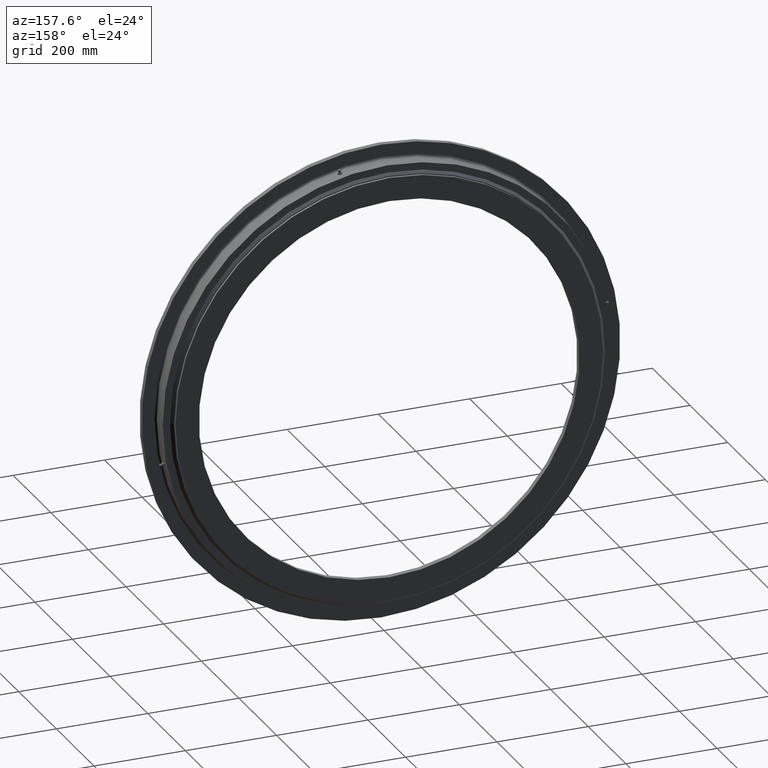
[diagram: clean part render]
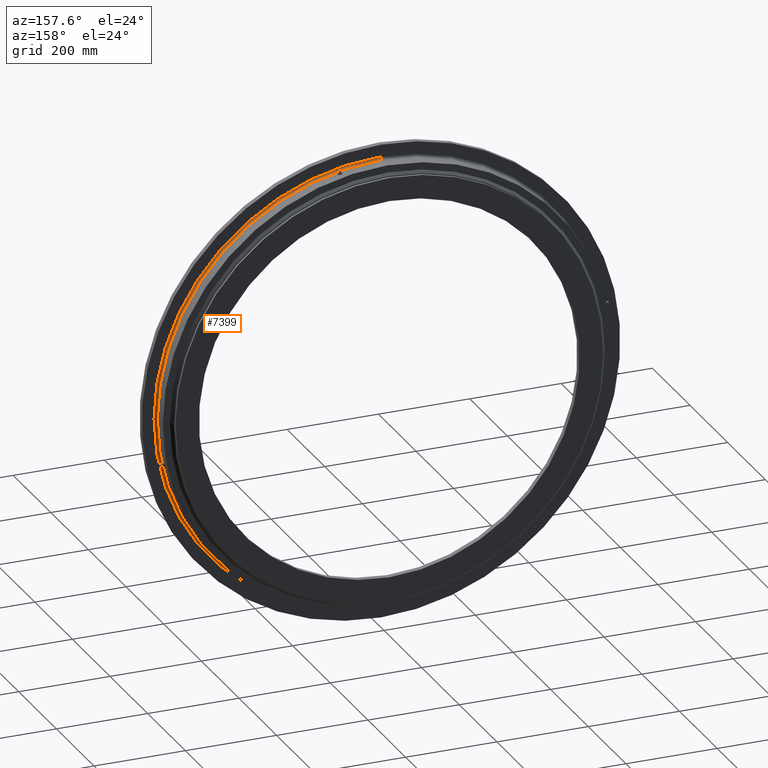
[diagram: same view with one face highlighted and labeled with its STEP entity id]
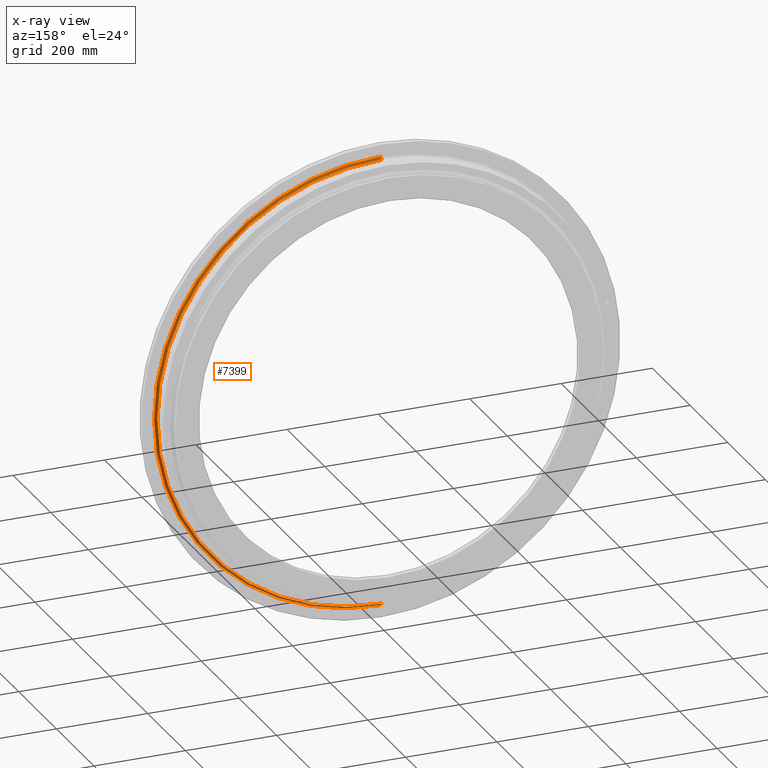
[diagram: x-ray of the same camera — body ghosted, the highlighted face saturated]
A machine part, auxiliary view. The second image highlights one B-rep face of the part: STEP entity #7399.
The next image is the same camera in x-ray: the body ghosted, the highlighted face saturated — about 0% of this face is hidden behind the body in this view.
In plain terms, the highlighted toroidal blend (fillet) surface has major radius 497 mm and minor (blend) radius 5 mm.
Its self-contained STEP definition (entity closure, byte-faithful):
#35 = AXIS2_PLACEMENT_3D ( 'NONE', #6426, #2688, #7034 ) ;
#187 = CARTESIAN_POINT ( 'NONE',  ( 0.0000000000000000000, -11.00000000000003600, 497.0000000000000000 ) ) ;
#729 = TOROIDAL_SURFACE ( 'NONE', #3355, 497.0000000000000000, 5.000000000000000000 ) ;
#812 = DIRECTION ( 'NONE',  ( 0.0000000000000000000, 0.0000000000000000000, 1.000000000000000000 ) ) ;
#1587 = EDGE_CURVE ( 'NONE', #3289, #3042, #2614, .T. ) ;
#2135 = DIRECTION ( 'NONE',  ( -0.0000000000000000000, 1.000000000000000000, -5.904125040278464100E-017 ) ) ;
#2245 = CARTESIAN_POINT ( 'NONE',  ( 6.086494591762345700E-014, -11.00000000000009400, -497.0000000000000000 ) ) ;
#2263 = AXIS2_PLACEMENT_3D ( 'NONE', #187, #4523, #812 ) ;
#2339 = VERTEX_POINT ( 'NONE', #7457 ) ;
#2458 = EDGE_CURVE ( 'NONE', #3289, #3147, #5355, .T. ) ;
#2614 = CIRCLE ( 'NONE', #4127, 492.0000000000000000 ) ;
#2688 = DIRECTION ( 'NONE',  ( 0.0000000000000000000, -1.000000000000000000, 5.904125040278464100E-017 ) ) ;
#2863 = DIRECTION ( 'NONE',  ( 1.224646799147349500E-016, 0.0000000000000000000, -1.000000000000000000 ) ) ;
#2926 = DIRECTION ( 'NONE',  ( -0.0000000000000000000, 1.000000000000000000, -5.904125040278464100E-017 ) ) ;
#3042 = VERTEX_POINT ( 'NONE', #4066 ) ;
#3147 = VERTEX_POINT ( 'NONE', #6731 ) ;
#3231 = CARTESIAN_POINT ( 'NONE',  ( 0.0000000000000000000, -11.00000000000003600, 492.0000000000000000 ) ) ;
#3289 = VERTEX_POINT ( 'NONE', #3231 ) ;
#3355 = AXIS2_PLACEMENT_3D ( 'NONE', #7706, #2135, #5877 ) ;
#3470 = AXIS2_PLACEMENT_3D ( 'NONE', #2245, #6594, #2863 ) ;
#3757 = EDGE_CURVE ( 'NONE', #2339, #3147, #5306, .T. ) ;
#4030 = CIRCLE ( 'NONE', #3470, 5.000000000000004400 ) ;
#4066 = CARTESIAN_POINT ( 'NONE',  ( 6.025262251804978100E-014, -11.00000000000009400, -492.0000000000000000 ) ) ;
#4124 = ORIENTED_EDGE ( 'NONE', *, *, #3757, .F. ) ;
#4127 = AXIS2_PLACEMENT_3D ( 'NONE', #4799, #2926, #6648 ) ;
#4523 = DIRECTION ( 'NONE',  ( -1.000000000000000000, 0.0000000000000000000, 0.0000000000000000000 ) ) ;
#4799 = CARTESIAN_POINT ( 'NONE',  ( 0.0000000000000000000, -11.00000000000006600, -2.178654252430954600E-015 ) ) ;
#5043 = ORIENTED_EDGE ( 'NONE', *, *, #2458, .T. ) ;
#5306 = CIRCLE ( 'NONE', #35, 497.0000000000000000 ) ;
#5355 = CIRCLE ( 'NONE', #2263, 5.000000000000004400 ) ;
#5464 = ORIENTED_EDGE ( 'NONE', *, *, #1587, .F. ) ;
#5877 = DIRECTION ( 'NONE',  ( 0.0000000000000000000, 5.904125040278464100E-017, 1.000000000000000000 ) ) ;
#5966 = ORIENTED_EDGE ( 'NONE', *, *, #7937, .F. ) ;
#6426 = CARTESIAN_POINT ( 'NONE',  ( 0.0000000000000000000, -16.00000000000006800, -1.883448000417031200E-015 ) ) ;
#6594 = DIRECTION ( 'NONE',  ( 1.000000000000000000, 7.230467832342758500E-033, 1.224646799147353200E-016 ) ) ;
#6648 = DIRECTION ( 'NONE',  ( 0.0000000000000000000, 5.993963230001163000E-017, 1.000000000000000000 ) ) ;
#6731 = CARTESIAN_POINT ( 'NONE',  ( 0.0000000000000000000, -16.00000000000003600, 497.0000000000000000 ) ) ;
#7034 = DIRECTION ( 'NONE',  ( 0.0000000000000000000, 5.584622860287507400E-017, 1.000000000000000000 ) ) ;
#7141 = FACE_OUTER_BOUND ( 'NONE', #7273, .T. ) ;
#7273 = EDGE_LOOP ( 'NONE', ( #5966, #5464, #5043, #4124 ) ) ;
#7399 = ADVANCED_FACE ( 'NONE', ( #7141 ), #729, .F. ) ;
#7457 = CARTESIAN_POINT ( 'NONE',  ( 6.086494591762345700E-014, -16.00000000000009200, -497.0000000000000000 ) ) ;
#7706 = CARTESIAN_POINT ( 'NONE',  ( 0.0000000000000000000, -11.00000000000006600, -2.178654252430954600E-015 ) ) ;
#7937 = EDGE_CURVE ( 'NONE', #3042, #2339, #4030, .T. ) ;